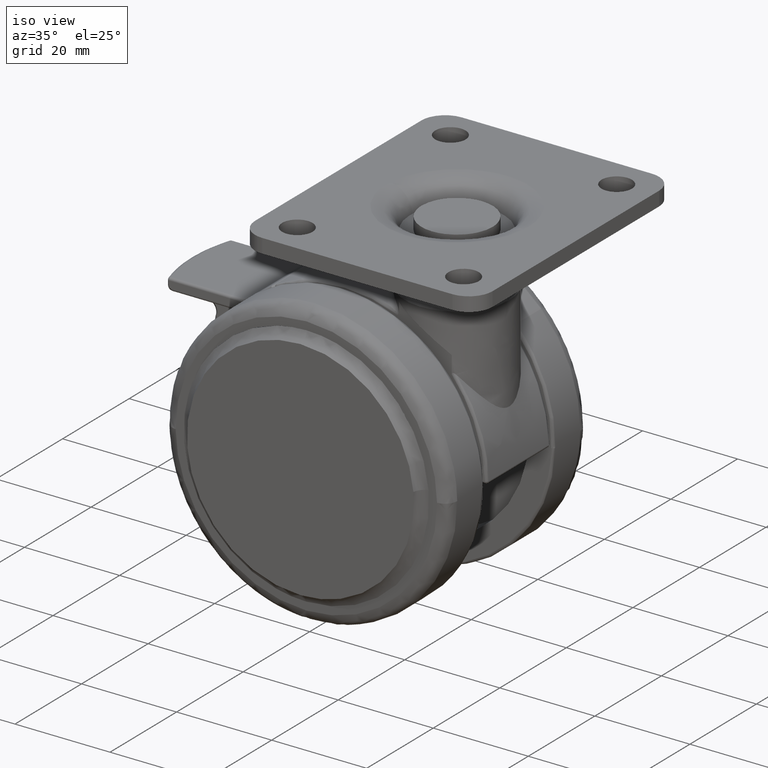
[diagram: clean part render]
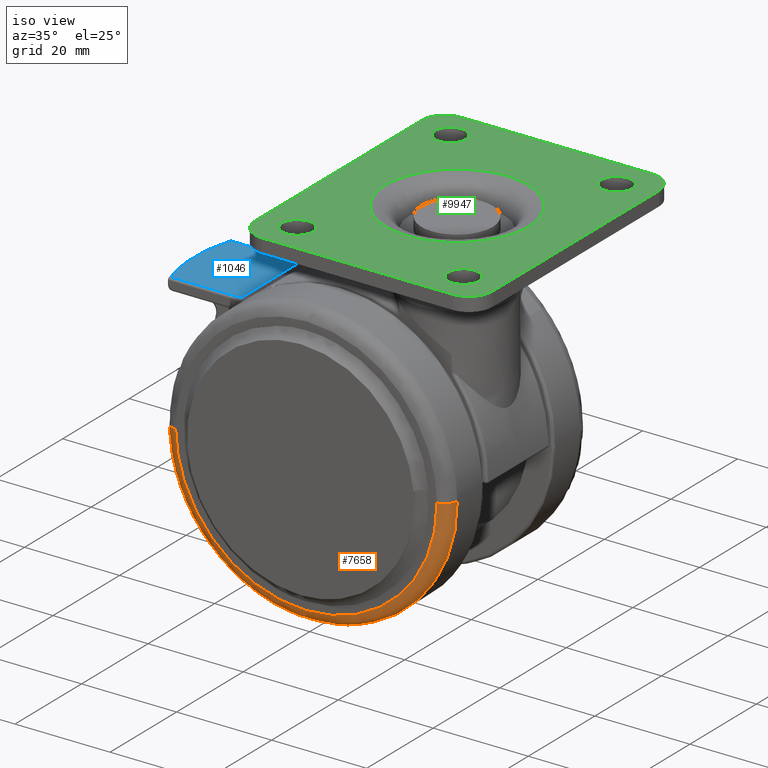
[diagram: same view with three faces highlighted in distinct colors, each labeled with its STEP entity id]
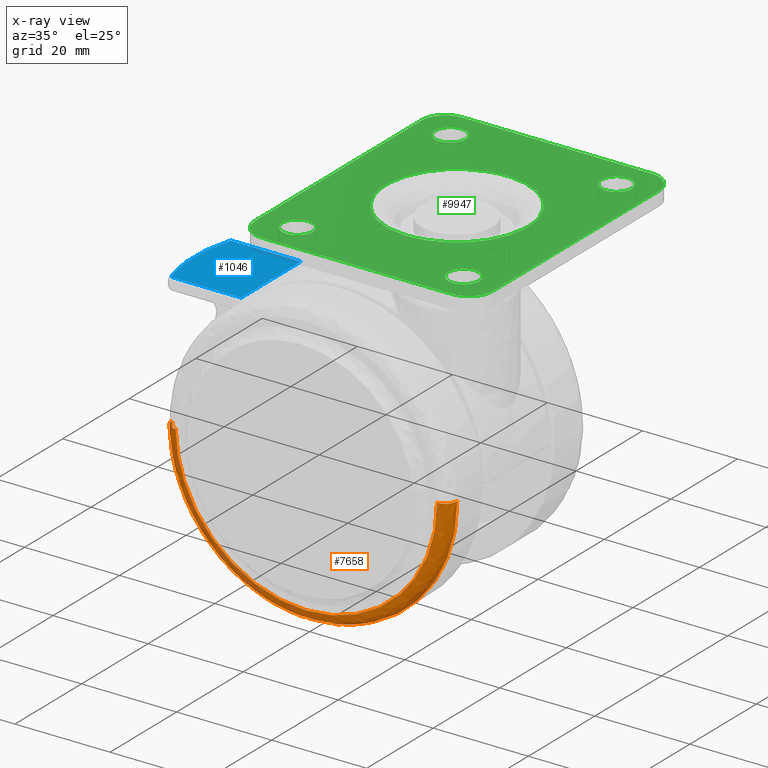
[diagram: x-ray of the same camera — body ghosted, the three highlighted faces saturated]
A machine part, iso view with three faces highlighted in distinct colors.
The next image is the same camera in x-ray (body ghosted, the three faces saturated) — at least one of them is partly hidden behind the body in this view.
Their STEP definitions:

[orange] entity #7658 — the highlighted face is a freeform B-spline surface patch.
#6841=CARTESIAN_POINT('',(21.761231148593620,-18.500000000258090,-20.650637251607481));
#6842=VERTEX_POINT('',#6841);
#6848=CARTESIAN_POINT('',(0.0,-18.500000000000000,-30.0));
#6849=VERTEX_POINT('',#6848);
#6850=CARTESIAN_POINT('',(21.761231148593620,-18.500000000258090,-20.650637251607481));
#6851=CARTESIAN_POINT('',(20.931999387325529,-18.500000000243929,-21.524500630333389));
#6852=CARTESIAN_POINT('',(18.982416055899609,-18.500000000212552,-23.345607756747722));
#6853=CARTESIAN_POINT('',(15.407781718857020,-18.500000000161769,-25.888028934307560));
#6854=CARTESIAN_POINT('',(11.358538172307791,-18.500000000111481,-27.892540451797181));
#6855=CARTESIAN_POINT('',(7.179577390787070,-18.500000000065761,-29.219673872537982));
#6856=CARTESIAN_POINT('',(3.487245917462095,-18.500000000030081,-29.870036624989201));
#6857=CARTESIAN_POINT('',(1.077874549666209,-18.500000000008800,-30.000014829778259));
#6858=CARTESIAN_POINT('',(0.0,-18.500000000000000,-30.0));
#6859=B_SPLINE_CURVE_WITH_KNOTS('',3,(#6850,#6851,#6852,#6853,#6854,#6855,#6856,#6857,#6858),.UNSPECIFIED.,.F.,.U.,(4,1,1,1,1,1,4),(5.760480E-009,3.614059115114056,7.988986165949950,13.124746143221399,17.119250816665769,21.113755602137349,24.347383874365331),.UNSPECIFIED.);
#6860=EDGE_CURVE('',#6842,#6849,#6859,.T.);
#6862=CARTESIAN_POINT('',(-29.997631326114458,-18.500000000502141,-0.376981196502116));
#6863=VERTEX_POINT('',#6862);
#6864=CARTESIAN_POINT('',(0.0,-18.500000000000000,-30.0));
#6865=CARTESIAN_POINT('',(-0.973890313912744,-18.500000000008260,-30.000006734791270));
#6866=CARTESIAN_POINT('',(-3.226019137422327,-18.500000000028230,-29.890269819626319));
#6867=CARTESIAN_POINT('',(-6.958495776596273,-18.500000000065061,-29.282995795281192));
#6868=CARTESIAN_POINT('',(-10.631077299220200,-18.500000000105508,-28.141735741623840));
#6869=CARTESIAN_POINT('',(-13.623916913833501,-18.500000000142489,-26.772205732237492));
#6870=CARTESIAN_POINT('',(-16.059013617123920,-18.500000000174730,-25.386407942250859));
#6871=CARTESIAN_POINT('',(-18.915336785254048,-18.500000000215518,-23.408750785415972));
#6872=CARTESIAN_POINT('',(-21.930709699545790,-18.500000000264169,-20.641061786953681));
#6873=CARTESIAN_POINT('',(-24.449887506142979,-18.500000000311879,-17.500191612605999));
#6874=CARTESIAN_POINT('',(-26.490535567356002,-18.500000000356280,-14.248158141157919));
#6875=CARTESIAN_POINT('',(-28.139101597622648,-18.500000000400011,-10.706149232539270));
#6876=CARTESIAN_POINT('',(-29.567503921568019,-18.500000000452001,-5.910909280889249));
#6877=CARTESIAN_POINT('',(-29.971975696641788,-18.500000000485009,-2.446378040027645));
#6878=CARTESIAN_POINT('',(-29.997631326114458,-18.500000000502141,-0.376981196502116));
#6879=B_SPLINE_CURVE_WITH_KNOTS('',3,(#6864,#6865,#6866,#6867,#6868,#6869,#6870,#6871,#6872,#6873,#6874,#6875,#6876,#6877,#6878),.UNSPECIFIED.,.F.,.U.,(4,1,1,1,1,1,1,1,1,1,1,1,4),(0.000000021029336,2.921676959780939,6.756392132838030,11.321531479891799,14.425831748961929,16.617091083892870,19.721384648203792,24.834313041489128,28.851626959342848,31.773321659809891,36.338466456177287,40.538389696396962,46.746970849121951),.UNSPECIFIED.);
#6880=EDGE_CURVE('',#6849,#6863,#6879,.T.);
#6943=CARTESIAN_POINT('',(29.997631326114458,-18.500000000502141,0.376981196502107));
#6944=VERTEX_POINT('',#6943);
#6963=CARTESIAN_POINT('',(29.997631326114458,-18.500000000502141,0.376981196502107));
#6964=CARTESIAN_POINT('',(30.010519448718760,-18.500000000493628,-0.647960923933294));
#6965=CARTESIAN_POINT('',(29.912489426538791,-18.500000000471761,-3.181817578756475));
#6966=CARTESIAN_POINT('',(29.285683657807041,-18.500000000434870,-6.939322195956899));
#6967=CARTESIAN_POINT('',(28.128197136321571,-18.500000000394810,-10.628680805321990));
#6968=CARTESIAN_POINT('',(26.645703283389871,-18.500000000354401,-13.934565004311020));
#6969=CARTESIAN_POINT('',(24.629558554608519,-18.500000000309999,-17.304593977236468));
#6970=CARTESIAN_POINT('',(22.840433761584698,-18.500000000276479,-19.513544893934728));
#6971=CARTESIAN_POINT('',(21.761231148593620,-18.500000000258090,-20.650637251607481));
#6972=B_SPLINE_CURVE_WITH_KNOTS('',3,(#6963,#6964,#6965,#6966,#6967,#6968,#6969,#6970,#6971),.UNSPECIFIED.,.F.,.U.,(4,1,1,1,1,1,4),(6.902248E-009,3.075076114890138,7.597267632540955,11.395907261290400,14.651862563165331,18.450506457625920,23.153572903452101),.UNSPECIFIED.);
#6973=EDGE_CURVE('',#6944,#6842,#6972,.T.);
#7466=CARTESIAN_POINT('',(-27.497828717093260,-21.0,-0.345566096877184));
#7467=VERTEX_POINT('',#7466);
#7489=CARTESIAN_POINT('',(0.0,-21.0,-27.500000000000000));
#7490=VERTEX_POINT('',#7489);
#7491=CARTESIAN_POINT('',(0.0,-21.0,-27.500000000000000));
#7492=CARTESIAN_POINT('',(-1.897085366435847,-21.000000000000039,-27.500270856961521));
#7493=CARTESIAN_POINT('',(-4.854145511963456,-21.0,-27.192754469429278));
#7494=CARTESIAN_POINT('',(-8.683992625839307,-20.999999999999979,-26.154189658594149));
#7495=CARTESIAN_POINT('',(-11.229423489223720,-21.000000000000039,-25.145225460336860));
#7496=CARTESIAN_POINT('',(-13.720043277257130,-21.000000000000028,-23.884185283102241));
#7497=CARTESIAN_POINT('',(-16.456529593838269,-21.000000000000028,-22.145417768254770));
#7498=CARTESIAN_POINT('',(-19.139607051584751,-20.999999999999730,-19.857449163711070));
#7499=CARTESIAN_POINT('',(-21.646654345524411,-21.000000000000188,-17.077638434692059));
#7500=CARTESIAN_POINT('',(-23.439043589757421,-20.999999999999901,-14.508108484473050));
#7501=CARTESIAN_POINT('',(-24.912088002822919,-21.000000000000021,-11.748836840783710));
#7502=CARTESIAN_POINT('',(-26.067500346707259,-21.0,-8.961824471735341));
#7503=CARTESIAN_POINT('',(-27.143068942500459,-21.000000000000028,-5.139872057200232));
#7504=CARTESIAN_POINT('',(-27.475601343660820,-21.000000000000011,-2.130914012779630));
#7505=CARTESIAN_POINT('',(-27.497828717093260,-21.0,-0.345566096877184));
#7506=B_SPLINE_CURVE_WITH_KNOTS('',3,(#7491,#7492,#7493,#7494,#7495,#7496,#7497,#7498,#7499,#7500,#7501,#7502,#7503,#7504,#7505),.UNSPECIFIED.,.F.,.U.,(4,1,1,1,1,1,1,1,1,1,1,1,4),(0.000000027495133,5.691187628219666,8.871576655071785,11.884565905597880,13.893226149922350,17.241006999969041,21.593066609866838,24.438662586925840,28.455990303919592,30.966821428457202,33.812429082353702,37.494966805851412,42.851389945901253),.UNSPECIFIED.);
#7507=EDGE_CURVE('',#7490,#7467,#7506,.T.);
#7509=CARTESIAN_POINT('',(27.497828717093260,-21.0,0.345566096877190));
#7510=VERTEX_POINT('',#7509);
#7511=CARTESIAN_POINT('',(27.497828717093260,-21.0,0.345566096877190));
#7512=CARTESIAN_POINT('',(27.512114652331469,-21.000000000000039,-0.788262012692066));
#7513=CARTESIAN_POINT('',(27.408512315544709,-20.999999999999929,-2.887464900331992));
#7514=CARTESIAN_POINT('',(26.936620229093439,-20.999999999999989,-5.744243817406962));
#7515=CARTESIAN_POINT('',(26.208336355375149,-21.000000000000139,-8.486648899182917));
#7516=CARTESIAN_POINT('',(25.263941718985301,-20.999999999999890,-10.983314142465421));
#7517=CARTESIAN_POINT('',(23.817285281532019,-21.000000000000011,-13.876511539507231));
#7518=CARTESIAN_POINT('',(22.038125044155009,-20.999999999999972,-16.584994279625260));
#7519=CARTESIAN_POINT('',(19.582945153945420,-21.000000000000011,-19.417423428238038));
#7520=CARTESIAN_POINT('',(17.204146923685759,-21.0,-21.532315770445312));
#7521=CARTESIAN_POINT('',(14.603547640655830,-21.000000000000011,-23.358859115849629));
#7522=CARTESIAN_POINT('',(12.274270543310820,-21.000000000000028,-24.662575531999490));
#7523=CARTESIAN_POINT('',(9.565777897079343,-20.999999999999972,-25.834006522993629));
#7524=CARTESIAN_POINT('',(7.020592286055688,-21.000000000000039,-26.638536210229532));
#7525=CARTESIAN_POINT('',(3.741887626315047,-21.000000000000060,-27.317185256784750));
#7526=CARTESIAN_POINT('',(1.474096523654951,-20.999999999999819,-27.500112064418989));
#7527=CARTESIAN_POINT('',(0.0,-21.0,-27.500000000000000));
#7528=B_SPLINE_CURVE_WITH_KNOTS('',3,(#7511,#7512,#7513,#7514,#7515,#7516,#7517,#7518,#7519,#7520,#7521,#7522,#7523,#7524,#7525,#7526,#7527),.UNSPECIFIED.,.F.,.U.,(4,1,1,1,1,1,1,1,1,1,1,1,1,1,4),(0.000000026008991,3.401753370764880,6.293246877302309,8.674491144497011,11.906165652713170,14.287399005994050,18.369534865043970,21.601197727710890,25.513208653057092,27.894436465584501,31.126113742347151,33.507350376120762,36.739032621623103,39.120274990648717,43.542543582517787),.UNSPECIFIED.);
#7529=EDGE_CURVE('',#7510,#7490,#7528,.T.);
#7589=CARTESIAN_POINT('',(27.497828717093260,-21.0,0.345566096877190));
#7590=CARTESIAN_POINT('',(27.794417893576959,-21.000254366651550,0.349293342581669));
#7591=CARTESIAN_POINT('',(28.264605930511941,-20.915237643481589,0.355202210738668));
#7592=CARTESIAN_POINT('',(28.927918296029709,-20.586470801807572,0.363538078531114));
#7593=CARTESIAN_POINT('',(29.408958939399671,-20.161182271534919,0.369583331737257));
#7594=CARTESIAN_POINT('',(29.736951676849060,-19.649829461512368,0.373705226994147));
#7595=CARTESIAN_POINT('',(29.943804532880218,-19.113537836009641,0.376304753471078));
#7596=CARTESIAN_POINT('',(29.997732895268761,-18.735223988039969,0.376982472927977));
#7597=CARTESIAN_POINT('',(29.997631326114458,-18.500000000502141,0.376981196502107));
#7598=B_SPLINE_CURVE_WITH_KNOTS('',3,(#7589,#7590,#7591,#7592,#7593,#7594,#7595,#7596,#7597),.UNSPECIFIED.,.F.,.U.,(4,1,1,1,1,1,4),(0.000000106168399,0.889712853617577,1.411286363706622,2.208930088812190,2.791861405146521,3.221383350081401,3.927015456077293),.UNSPECIFIED.);
#7599=EDGE_CURVE('',#7510,#6944,#7598,.T.);
#7604=CARTESIAN_POINT('',(-27.497828717093260,-21.0,-0.345566096877184));
#7605=CARTESIAN_POINT('',(-27.640985051154772,-21.000005183687609,-0.347365147124147));
#7606=CARTESIAN_POINT('',(-27.978441840631859,-20.970962434252041,-0.351605977433012));
#7607=CARTESIAN_POINT('',(-28.432461209758070,-20.836257221985029,-0.357311653421833));
#7608=CARTESIAN_POINT('',(-28.940804505170359,-20.568591144870620,-0.363700019934935));
#7609=CARTESIAN_POINT('',(-29.379094536602679,-20.190467875993129,-0.369208024828730));
#7610=CARTESIAN_POINT('',(-29.748534513742040,-19.644789406525600,-0.373850788877250));
#7611=CARTESIAN_POINT('',(-29.953408136223072,-19.082902589873139,-0.376425442262274));
#7612=CARTESIAN_POINT('',(-29.997660865497849,-18.684074425066960,-0.376981567726879));
#7613=CARTESIAN_POINT('',(-29.997631326114458,-18.500000000502141,-0.376981196502116));
#7614=B_SPLINE_CURVE_WITH_KNOTS('',3,(#7604,#7605,#7606,#7607,#7608,#7609,#7610,#7611,#7612,#7613),.UNSPECIFIED.,.F.,.U.,(4,1,1,1,1,1,1,4),(0.000000106159672,0.429509653126690,1.012434279452647,1.411286363703748,2.147572307954930,2.730500796885241,3.374793093247939,3.927015456077287),.UNSPECIFIED.);
#7615=EDGE_CURVE('',#7467,#6863,#7614,.T.);
#7620=CARTESIAN_POINT('',(27.314399869140562,-20.993948415769275,1.107271474256576));
#7621=CARTESIAN_POINT('',(27.319171830048464,-20.993948415769275,0.727550879843133));
#7622=CARTESIAN_POINT('',(27.667381279899381,-20.993948415769271,-26.980618116012554));
#7623=CARTESIAN_POINT('',(0.343381581943409,-20.993948415769275,-27.323999697955983));
#7624=CARTESIAN_POINT('',(-26.980618116012554,-20.993948415769271,-27.667381279899381));
#7625=CARTESIAN_POINT('',(-27.328827565863083,-20.993948415769268,0.040787715923046));
#7626=CARTESIAN_POINT('',(-27.333599526770573,-20.993948415769275,0.420508310303988));
#7627=CARTESIAN_POINT('',(30.180851656252333,-21.193842822697402,1.223471731681471));
#7628=CARTESIAN_POINT('',(30.186124400481049,-21.193842822697391,0.803902164503692));
#7629=CARTESIAN_POINT('',(30.570875952834534,-21.193842822697391,-29.812041884667309));
#7630=CARTESIAN_POINT('',(0.379417034083618,-21.193842822697388,-30.191458918750921));
#7631=CARTESIAN_POINT('',(-29.812041884667309,-21.193842822697391,-30.570875952834534));
#7632=CARTESIAN_POINT('',(-30.196793437020357,-21.193842822697398,0.045068096299696));
#7633=CARTESIAN_POINT('',(-30.202066181248615,-21.193842822697395,0.464637663441562));
#7634=CARTESIAN_POINT('',(29.981043176384581,-18.326157187061735,1.215371893093324));
#7635=CARTESIAN_POINT('',(29.986281013082486,-18.326157187061746,0.798580032733478));
#7636=CARTESIAN_POINT('',(30.368485366845370,-18.326157187061742,-29.614675062863423));
#7637=CARTESIAN_POINT('',(0.376905151990971,-18.326157187061735,-29.991580214854395));
#7638=CARTESIAN_POINT('',(-29.614675062863423,-18.326157187061742,-30.368485366845370));
#7639=CARTESIAN_POINT('',(-29.996879416625855,-18.326157187061746,0.044769728715019));
#7640=CARTESIAN_POINT('',(-30.002117253323302,-18.326157187061746,0.461561589039191));
#7648=(BOUNDED_SURFACE()B_SPLINE_SURFACE(2,2,((#7620,#7627,#7634),(#7621,#7628,#7635),(#7622,#7629,#7636),(#7623,#7630,#7637),(#7624,#7631,#7638),(#7625,#7632,#7639),(#7626,#7633,#7640)),.UNSPECIFIED.,.F.,.F.,.U.)B_SPLINE_SURFACE_WITH_KNOTS((3,1,2,1,3),(3,3),(0.0,0.993912017759718,50.689512901467438,100.385113785175190,101.379025802848300),(0.0,4.556824911211793),.UNSPECIFIED.)GEOMETRIC_REPRESENTATION_ITEM()RATIONAL_B_SPLINE_SURFACE(((0.927077710674232,0.608371547716092,0.927077722427194),(0.921709902957582,0.604849058230237,0.921709914642495),(0.647951709431553,0.425202094466791,0.647951717645915),(0.916342095240933,0.601326568744382,0.916342106857795),(0.647951709431553,0.425202094466791,0.647951717645915),(0.921709902957115,0.604849058229930,0.921709914642027),(0.927077710673297,0.608371547715478,0.927077722426259)))REPRESENTATION_ITEM('')SURFACE());
#7649=ORIENTED_EDGE('',*,*,#7507,.T.);
#7650=ORIENTED_EDGE('',*,*,#7615,.T.);
#7651=ORIENTED_EDGE('',*,*,#6880,.F.);
#7652=ORIENTED_EDGE('',*,*,#6860,.F.);
#7653=ORIENTED_EDGE('',*,*,#6973,.F.);
#7654=ORIENTED_EDGE('',*,*,#7599,.F.);
#7655=ORIENTED_EDGE('',*,*,#7529,.T.);
#7656=EDGE_LOOP('',(#7649,#7650,#7651,#7652,#7653,#7654,#7655));
#7657=FACE_OUTER_BOUND('',#7656,.T.);
#7658=ADVANCED_FACE('',(#7657),#7648,.T.);

[blue] entity #1046 — the highlighted face is a freeform B-spline surface patch.
#83=CARTESIAN_POINT('',(-22.107690969433900,-8.999999999999901,21.499999173841701));
#84=VERTEX_POINT('',#83);
#95=CARTESIAN_POINT('',(-36.909291575760001,-8.999999999999901,21.499999173841850));
#96=VERTEX_POINT('',#95);
#97=CARTESIAN_POINT('',(-36.909291575760001,-8.999999999999901,21.499999173841850));
#98=CARTESIAN_POINT('',(-22.107690969433900,-8.999999999999901,21.499999173841701));
#99=QUASI_UNIFORM_CURVE('',1,(#97,#98),.UNSPECIFIED.,.F.,.U.);
#100=EDGE_CURVE('',#96,#84,#99,.T.);
#238=CARTESIAN_POINT('',(-22.107690969433900,8.999999999999901,21.499999173841701));
#239=VERTEX_POINT('',#238);
#259=CARTESIAN_POINT('',(-36.909291575760001,8.999999999999890,21.499999173841850));
#260=VERTEX_POINT('',#259);
#272=CARTESIAN_POINT('',(-22.107690969433900,8.999999999999901,21.499999173841701));
#273=CARTESIAN_POINT('',(-36.909291575760001,8.999999999999890,21.499999173841850));
#274=QUASI_UNIFORM_CURVE('',1,(#272,#273),.UNSPECIFIED.,.F.,.U.);
#275=EDGE_CURVE('',#239,#260,#274,.T.);
#842=CARTESIAN_POINT('',(-22.107690969433900,8.999999999999901,21.499999173841701));
#843=CARTESIAN_POINT('',(-22.107690969433900,-8.999999999999901,21.499999173841701));
#844=QUASI_UNIFORM_CURVE('',1,(#842,#843),.UNSPECIFIED.,.F.,.U.);
#845=EDGE_CURVE('',#239,#84,#844,.T.);
#1025=CARTESIAN_POINT('',(-21.298101107577789,-9.899099965112397,21.499999173841850));
#1026=CARTESIAN_POINT('',(-39.125287137301413,-9.899099965112397,21.499999173841850));
#1027=CARTESIAN_POINT('',(-21.298101107577789,9.899100447910019,21.499999173841850));
#1028=CARTESIAN_POINT('',(-39.125287137301413,9.899100447910019,21.499999173841850));
#1029=B_SPLINE_SURFACE_WITH_KNOTS('',1,1,((#1025,#1027),(#1026,#1028)),.UNSPECIFIED.,.F.,.F.,.U.,(2,2),(2,2),(0.0,17.827186029723620),(0.0,19.798200413022411),.UNSPECIFIED.);
#1030=ORIENTED_EDGE('',*,*,#845,.F.);
#1031=ORIENTED_EDGE('',*,*,#275,.T.);
#1032=CARTESIAN_POINT('',(-36.909291575760001,8.999999999999890,21.499999173841850));
#1033=CARTESIAN_POINT('',(-37.301705328589357,7.775197677513251,21.499999173841911));
#1034=CARTESIAN_POINT('',(-37.949128530602607,5.181539798987578,21.499999173841761));
#1035=CARTESIAN_POINT('',(-38.375090995149122,1.289111504717733,21.499999173841999));
#1036=CARTESIAN_POINT('',(-38.287195240667089,-2.337227327350015,21.499999173841459));
#1037=CARTESIAN_POINT('',(-37.814565783231707,-5.738664893048671,21.499999173842649));
#1038=CARTESIAN_POINT('',(-37.272640098036682,-7.865923542342959,21.499999173841200));
#1039=CARTESIAN_POINT('',(-36.909291575760001,-8.999999999999901,21.499999173841850));
#1040=B_SPLINE_CURVE_WITH_KNOTS('',3,(#1032,#1033,#1034,#1035,#1036,#1037,#1038,#1039),.UNSPECIFIED.,.F.,.U.,(4,1,1,1,1,4),(6.102375E-009,3.858389638430651,8.002601144851644,11.718073067232510,14.719052291514609,18.291635444429989),.UNSPECIFIED.);
#1041=EDGE_CURVE('',#260,#96,#1040,.T.);
#1042=ORIENTED_EDGE('',*,*,#1041,.T.);
#1043=ORIENTED_EDGE('',*,*,#100,.T.);
#1044=EDGE_LOOP('',(#1030,#1031,#1042,#1043));
#1045=FACE_OUTER_BOUND('',#1044,.T.);
#1046=ADVANCED_FACE('',(#1045),#1029,.F.);

[green] entity #9947 — the highlighted face is a freeform B-spline surface patch.
#8501=CARTESIAN_POINT('',(1.661888827501579,20.640712218985350,46.0));
#8502=VERTEX_POINT('',#8501);
#8508=CARTESIAN_POINT('',(2.700000000000000,23.0,46.0));
#8509=VERTEX_POINT('',#8508);
#8510=CARTESIAN_POINT('',(1.661888827501579,20.640712218985350,46.0));
#8511=CARTESIAN_POINT('',(1.916743720772984,20.873942905152312,46.000000000000092));
#8512=CARTESIAN_POINT('',(2.236901764601848,21.281049056889032,46.0));
#8513=CARTESIAN_POINT('',(2.604632195147628,22.088241094445419,45.999999999999979));
#8514=CARTESIAN_POINT('',(2.700307898901814,22.626877823792139,46.000000000000021));
#8515=CARTESIAN_POINT('',(2.700000000000000,23.0,46.0));
#8516=B_SPLINE_CURVE_WITH_KNOTS('',3,(#8510,#8511,#8512,#8513,#8514,#8515),.UNSPECIFIED.,.F.,.U.,(4,1,1,4),(0.000000029412556,1.036306034445707,1.533713299139557,2.652919232562654),.UNSPECIFIED.);
#8517=EDGE_CURVE('',#8502,#8509,#8516,.T.);
#8519=CARTESIAN_POINT('',(-0.500001340175659,26.199999999999719,46.0));
#8520=VERTEX_POINT('',#8519);
#8521=CARTESIAN_POINT('',(2.700000000000000,23.0,46.0));
#8522=CARTESIAN_POINT('',(2.700076988803981,23.274892612250461,45.999999999999943));
#8523=CARTESIAN_POINT('',(2.627044764529993,23.837741311584018,46.000000000000057));
#8524=CARTESIAN_POINT('',(2.359177667256553,24.484566554396530,46.000000000000057));
#8525=CARTESIAN_POINT('',(2.016640802986306,24.997028826058020,45.999999999999972));
#8526=CARTESIAN_POINT('',(1.661165378812934,25.384475383976909,45.999999999999787));
#8527=CARTESIAN_POINT('',(1.167184607576288,25.755553024401820,46.000000000000341));
#8528=CARTESIAN_POINT('',(0.455415330122470,26.097634395647599,45.999999999999531));
#8529=CARTESIAN_POINT('',(-0.133442462390952,26.200272777989479,46.000000000000178));
#8530=CARTESIAN_POINT('',(-0.500001340175659,26.199999999999719,46.0));
#8531=B_SPLINE_CURVE_WITH_KNOTS('',3,(#8521,#8522,#8523,#8524,#8525,#8526,#8527,#8528,#8529,#8530),.UNSPECIFIED.,.F.,.U.,(4,1,1,1,1,1,1,4),(0.000000105261810,0.824668159905265,1.688626347366894,2.081341753411128,2.670343052050241,3.259419716827376,3.927018970739030,5.026580540558659),.UNSPECIFIED.);
#8532=EDGE_CURVE('',#8509,#8520,#8531,.T.);
#8534=CARTESIAN_POINT('',(-2.661888827501582,25.359287781014650,46.0));
#8535=VERTEX_POINT('',#8534);
#8536=CARTESIAN_POINT('',(-0.500001340175659,26.199999999999719,46.0));
#8537=CARTESIAN_POINT('',(-0.821460617079464,26.200161941109570,46.000000000000107));
#8538=CARTESIAN_POINT('',(-1.266413628481869,26.132357803427720,45.999999999999901));
#8539=CARTESIAN_POINT('',(-2.008375584216024,25.853680229813278,46.000000000000043));
#8540=CARTESIAN_POINT('',(-2.406797254941520,25.593344494102439,46.0));
#8541=CARTESIAN_POINT('',(-2.661888827501582,25.359287781014650,46.0));
#8542=B_SPLINE_CURVE_WITH_KNOTS('',3,(#8536,#8537,#8538,#8539,#8540,#8541),.UNSPECIFIED.,.F.,.U.,(4,1,1,4),(0.000000021626867,0.964308508729303,1.335174790699742,2.373659766540841),.UNSPECIFIED.);
#8543=EDGE_CURVE('',#8520,#8535,#8542,.T.);
#8583=CARTESIAN_POINT('',(-3.700000000000000,23.0,46.0));
#8584=VERTEX_POINT('',#8583);
#8585=CARTESIAN_POINT('',(-2.661888827501582,25.359287781014650,46.0));
#8586=CARTESIAN_POINT('',(-2.947424562905854,25.098127947570479,46.000000000000092));
#8587=CARTESIAN_POINT('',(-3.277403363151028,24.661023097421118,45.999999999999901));
#8588=CARTESIAN_POINT('',(-3.618654669351410,23.842732328690960,46.000000000000057));
#8589=CARTESIAN_POINT('',(-3.700195500050473,23.345465161269068,45.999999999999943));
#8590=CARTESIAN_POINT('',(-3.700000000000000,23.0,46.0));
#8591=B_SPLINE_CURVE_WITH_KNOTS('',3,(#8585,#8586,#8587,#8588,#8589,#8590),.UNSPECIFIED.,.F.,.U.,(4,1,1,4),(0.000000029411919,1.160665530059935,1.616613227562249,2.652919232562653),.UNSPECIFIED.);
#8592=EDGE_CURVE('',#8535,#8584,#8591,.T.);
#8594=CARTESIAN_POINT('',(-0.499998659824357,19.800000000000281,46.0));
#8595=VERTEX_POINT('',#8594);
#8596=CARTESIAN_POINT('',(-3.700000000000000,23.0,46.0));
#8597=CARTESIAN_POINT('',(-3.700345148515849,22.607258848985811,46.000000000000043));
#8598=CARTESIAN_POINT('',(-3.573069701095430,21.926812998021571,45.999999999999943));
#8599=CARTESIAN_POINT('',(-3.171713488558397,21.197784363615892,46.000000000000092));
#8600=CARTESIAN_POINT('',(-2.678245846318737,20.618490774618579,45.999999999999993));
#8601=CARTESIAN_POINT('',(-2.074688908487048,20.165033959303528,45.999999999999773));
#8602=CARTESIAN_POINT('',(-1.272289613075804,19.861327790496389,46.000000000000213));
#8603=CARTESIAN_POINT('',(-0.748707445686038,19.799958568341751,45.999999999999730));
#8604=CARTESIAN_POINT('',(-0.499998659824357,19.800000000000281,46.0));
#8605=B_SPLINE_CURVE_WITH_KNOTS('',3,(#8596,#8597,#8598,#8599,#8600,#8601,#8602,#8603,#8604),.UNSPECIFIED.,.F.,.U.,(4,1,1,1,1,1,4),(0.000000105269612,1.178103383195594,2.042052962212793,2.474052021637787,3.455771538001631,4.280451145652314,5.026580540558665),.UNSPECIFIED.);
#8606=EDGE_CURVE('',#8584,#8595,#8605,.T.);
#8608=CARTESIAN_POINT('',(-0.499998659824357,19.800000000000281,46.0));
#8609=CARTESIAN_POINT('',(-0.153809818887891,19.799784449867211,45.999999999999979));
#8610=CARTESIAN_POINT('',(0.414734104237284,19.893224992979569,45.999999999999901));
#8611=CARTESIAN_POINT('',(1.138213479001142,20.224068623707179,46.000000000000199));
#8612=CARTESIAN_POINT('',(1.497843046578740,20.490348786089790,45.999999999999837));
#8613=CARTESIAN_POINT('',(1.661888827501579,20.640712218985350,46.0));
#8614=B_SPLINE_CURVE_WITH_KNOTS('',3,(#8608,#8609,#8610,#8611,#8612,#8613),.UNSPECIFIED.,.F.,.U.,(4,1,1,4),(0.000000021623812,1.038484997428752,1.706066918696896,2.373659766540861),.UNSPECIFIED.);
#8615=EDGE_CURVE('',#8595,#8502,#8614,.T.);
#8702=CARTESIAN_POINT('',(36.661888827501578,20.640712218985350,45.999999999999993));
#8703=VERTEX_POINT('',#8702);
#8709=CARTESIAN_POINT('',(37.700000000000003,23.0,46.0));
#8710=VERTEX_POINT('',#8709);
#8711=CARTESIAN_POINT('',(36.661888827501578,20.640712218985350,45.999999999999993));
#8712=CARTESIAN_POINT('',(36.835090794431089,20.799380125237398,45.999999999999872));
#8713=CARTESIAN_POINT('',(37.173813323406819,21.186447190487900,46.000000000000448));
#8714=CARTESIAN_POINT('',(37.585109962379320,21.977670164112979,45.999999999999147));
#8715=CARTESIAN_POINT('',(37.700277019128173,22.626902472851029,46.000000000001073));
#8716=CARTESIAN_POINT('',(37.700000000000003,23.0,46.0));
#8717=B_SPLINE_CURVE_WITH_KNOTS('',3,(#8711,#8712,#8713,#8714,#8715,#8716),.UNSPECIFIED.,.F.,.U.,(4,1,1,4),(0.000000029413016,0.704682612825469,1.533713299139622,2.652919232562660),.UNSPECIFIED.);
#8718=EDGE_CURVE('',#8703,#8710,#8717,.T.);
#8720=CARTESIAN_POINT('',(34.499998659824342,26.199999999999719,46.0));
#8721=VERTEX_POINT('',#8720);
#8722=CARTESIAN_POINT('',(37.700000000000003,23.0,46.0));
#8723=CARTESIAN_POINT('',(37.700155385053947,23.327265940496059,45.999999999999957));
#8724=CARTESIAN_POINT('',(37.602780513440152,23.955489115041690,46.000000000000128));
#8725=CARTESIAN_POINT('',(37.207735922450453,24.777773204270218,46.000000000000043));
#8726=CARTESIAN_POINT('',(36.730138244514428,25.324481606913171,45.999999999999922));
#8727=CARTESIAN_POINT('',(36.241668434841117,25.700831152447311,46.000000000000213));
#8728=CARTESIAN_POINT('',(35.825690859124400,25.926472602496379,45.999999999999737));
#8729=CARTESIAN_POINT('',(35.232976934767777,26.138565383225920,46.000000000000320));
#8730=CARTESIAN_POINT('',(34.801083060736488,26.200128361351631,46.000000000000213));
#8731=CARTESIAN_POINT('',(34.499998659824342,26.199999999999719,46.0));
#8732=B_SPLINE_CURVE_WITH_KNOTS('',3,(#8722,#8723,#8724,#8725,#8726,#8727,#8728,#8729,#8730,#8731),.UNSPECIFIED.,.F.,.U.,(4,1,1,1,1,1,1,4),(0.000000105263994,0.981746555929980,1.884984490318498,2.709635221845645,3.141596801344444,3.730664804277713,4.123376205630324,5.026580540558654),.UNSPECIFIED.);
#8733=EDGE_CURVE('',#8710,#8721,#8732,.T.);
#8735=CARTESIAN_POINT('',(32.338111172498422,25.359287781014650,46.0));
#8736=VERTEX_POINT('',#8735);
#8737=CARTESIAN_POINT('',(34.499998659824342,26.199999999999719,46.0));
#8738=CARTESIAN_POINT('',(34.215645706999503,26.200087462161122,46.000000000000092));
#8739=CARTESIAN_POINT('',(33.684096768859753,26.128678344195890,45.999999999999950));
#8740=CARTESIAN_POINT('',(32.945105841640192,25.831385002217509,46.000000000000021));
#8741=CARTESIAN_POINT('',(32.529485635987861,25.534731241363762,46.000000000000028));
#8742=CARTESIAN_POINT('',(32.338111172498422,25.359287781014650,46.0));
#8743=B_SPLINE_CURVE_WITH_KNOTS('',3,(#8737,#8738,#8739,#8740,#8741,#8742),.UNSPECIFIED.,.F.,.U.,(4,1,1,4),(0.000000021626900,0.853035718230387,1.594799770241252,2.373659766540857),.UNSPECIFIED.);
#8744=EDGE_CURVE('',#8721,#8736,#8743,.T.);
#8785=CARTESIAN_POINT('',(31.300000000000001,23.0,46.0));
#8786=VERTEX_POINT('',#8785);
#8787=CARTESIAN_POINT('',(32.338111172498422,25.359287781014650,46.0));
#8788=CARTESIAN_POINT('',(32.185291020239227,25.219280814315560,46.000000000000092));
#8789=CARTESIAN_POINT('',(31.897706030784050,24.899109878014720,45.999999999999851));
#8790=CARTESIAN_POINT('',(31.602203642990389,24.396041805815180,46.0));
#8791=CARTESIAN_POINT('',(31.365500141044421,23.759876424100280,46.000000000000057));
#8792=CARTESIAN_POINT('',(31.299860640202670,23.303999644482289,45.999999999999901));
#8793=CARTESIAN_POINT('',(31.300000000000001,23.0,46.0));
#8794=B_SPLINE_CURVE_WITH_KNOTS('',3,(#8787,#8788,#8789,#8790,#8791,#8792,#8793),.UNSPECIFIED.,.F.,.U.,(4,1,1,1,4),(0.000000029412257,0.621777047602290,1.285023365005187,1.740973266759575,2.652919232562656),.UNSPECIFIED.);
#8795=EDGE_CURVE('',#8736,#8786,#8794,.T.);
#8797=CARTESIAN_POINT('',(34.500001340175643,19.800000000000281,45.999999999999993));
#8798=VERTEX_POINT('',#8797);
#8799=CARTESIAN_POINT('',(31.300000000000001,23.0,46.0));
#8800=CARTESIAN_POINT('',(31.299943529281791,22.725114704496409,45.999999999999957));
#8801=CARTESIAN_POINT('',(31.376289477471840,22.136052256106520,46.000000000000192));
#8802=CARTESIAN_POINT('',(31.673438186263230,21.442847799993089,45.999999999999687));
#8803=CARTESIAN_POINT('',(32.111765462056120,20.836490678554540,46.000000000000313));
#8804=CARTESIAN_POINT('',(32.588282858200472,20.399248349231151,45.999999999999957));
#8805=CARTESIAN_POINT('',(33.183424620699803,20.062154378891581,45.999999999999893));
#8806=CARTESIAN_POINT('',(33.806254211277597,19.852160142475949,46.000000000000483));
#8807=CARTESIAN_POINT('',(34.251288380549532,19.799944111373119,45.999999999999432));
#8808=CARTESIAN_POINT('',(34.500001340175643,19.800000000000281,45.999999999999993));
#8809=B_SPLINE_CURVE_WITH_KNOTS('',3,(#8799,#8800,#8801,#8802,#8803,#8804,#8805,#8806,#8807,#8808),.UNSPECIFIED.,.F.,.U.,(4,1,1,1,1,1,1,4),(0.000000105262140,0.824668159904866,1.767162747452496,2.238411792356550,3.063060452474589,3.691393158361809,4.280451145650599,5.026580540558739),.UNSPECIFIED.);
#8810=EDGE_CURVE('',#8786,#8798,#8809,.T.);
#8812=CARTESIAN_POINT('',(34.500001340175643,19.800000000000281,45.999999999999993));
#8813=CARTESIAN_POINT('',(34.870929999606972,19.799707748362220,46.000000000000121));
#8814=CARTESIAN_POINT('',(35.464137179203867,19.904382790438731,45.999999999999872));
#8815=CARTESIAN_POINT('',(36.179747779058069,20.251933173459641,45.999999999999993));
#8816=CARTESIAN_POINT('',(36.516063995005837,20.507063774191948,46.000000000000007));
#8817=CARTESIAN_POINT('',(36.661888827501578,20.640712218985350,45.999999999999993));
#8818=B_SPLINE_CURVE_WITH_KNOTS('',3,(#8812,#8813,#8814,#8815,#8816,#8817),.UNSPECIFIED.,.F.,.U.,(4,1,1,4),(0.000000021625047,1.112659058445236,1.780244814814004,2.373659766540864),.UNSPECIFIED.);
#8819=EDGE_CURVE('',#8798,#8703,#8818,.T.);
#8907=CARTESIAN_POINT('',(36.661888827501578,-25.359287781014650,46.0));
#8908=VERTEX_POINT('',#8907);
#8914=CARTESIAN_POINT('',(37.700000000000003,-23.0,46.0));
#8915=VERTEX_POINT('',#8914);
#8916=CARTESIAN_POINT('',(36.661888827501578,-25.359287781014650,46.0));
#8917=CARTESIAN_POINT('',(36.814709990152963,-25.219282325096039,45.999999999999872));
#8918=CARTESIAN_POINT('',(37.102294028925158,-24.899108849600271,46.000000000000213));
#8919=CARTESIAN_POINT('',(37.383718507166058,-24.419995918578490,45.999999999999901));
#8920=CARTESIAN_POINT('',(37.628474247346738,-23.787486000946672,46.000000000000107));
#8921=CARTESIAN_POINT('',(37.700177747545148,-23.331642034786000,45.999999999999943));
#8922=CARTESIAN_POINT('',(37.700000000000003,-23.0,46.0));
#8923=B_SPLINE_CURVE_WITH_KNOTS('',3,(#8916,#8917,#8918,#8919,#8920,#8921,#8922),.UNSPECIFIED.,.F.,.U.,(4,1,1,1,4),(0.000000029411896,0.621777047602016,1.285023365005253,1.658074056554264,2.652919232562657),.UNSPECIFIED.);
#8924=EDGE_CURVE('',#8908,#8915,#8923,.T.);
#8926=CARTESIAN_POINT('',(34.499998659824342,-19.800000000000281,46.0));
#8927=VERTEX_POINT('',#8926);
#8928=CARTESIAN_POINT('',(37.700000000000003,-23.0,46.0));
#8929=CARTESIAN_POINT('',(37.700007469216608,-22.816743092330441,46.000000000000043));
#8930=CARTESIAN_POINT('',(37.665073735486679,-22.410951493359651,45.999999999999893));
#8931=CARTESIAN_POINT('',(37.503610961406530,-21.841127415892831,46.000000000000277));
#8932=CARTESIAN_POINT('',(37.214151917877572,-21.266067615672089,45.999999999999687));
#8933=CARTESIAN_POINT('',(36.857653413113447,-20.809244221646541,46.000000000000043));
#8934=CARTESIAN_POINT('',(36.434812472882740,-20.435408688248490,46.000000000000007));
#8935=CARTESIAN_POINT('',(35.970688653497291,-20.137469574467101,46.000000000000057));
#8936=CARTESIAN_POINT('',(35.324616615343913,-19.874445738333339,45.999999999999837));
#8937=CARTESIAN_POINT('',(34.801074171848377,-19.799893723314909,46.000000000000313));
#8938=CARTESIAN_POINT('',(34.499998659824342,-19.800000000000281,46.0));
#8939=B_SPLINE_CURVE_WITH_KNOTS('',3,(#8928,#8929,#8930,#8931,#8932,#8933,#8934,#8935,#8936,#8937,#8938),.UNSPECIFIED.,.F.,.U.,(4,1,1,1,1,1,1,1,4),(0.000000105262246,0.549776105364639,1.217374445313705,1.767162747452991,2.474052021632666,2.945238975652895,3.455771537998703,4.123376205629437,5.026580540558741),.UNSPECIFIED.);
#8940=EDGE_CURVE('',#8915,#8927,#8939,.T.);
#8942=CARTESIAN_POINT('',(32.338111172498422,-20.640712218985350,46.0));
#8943=VERTEX_POINT('',#8942);
#8944=CARTESIAN_POINT('',(34.499998659824342,-19.800000000000281,46.0));
#8945=CARTESIAN_POINT('',(34.129071592101553,-19.799741386977690,46.000000000000078));
#8946=CARTESIAN_POINT('',(33.572947501144697,-19.897825401999871,45.999999999999879));
#8947=CARTESIAN_POINT('',(32.852597403870497,-20.232357644523240,46.000000000000213));
#8948=CARTESIAN_POINT('',(32.511265561877011,-20.481986987632808,45.999999999999808));
#8949=CARTESIAN_POINT('',(32.338111172498422,-20.640712218985350,46.0));
#8950=B_SPLINE_CURVE_WITH_KNOTS('',3,(#8944,#8945,#8946,#8947,#8948,#8949),.UNSPECIFIED.,.F.,.U.,(4,1,1,4),(0.000000021623204,1.112659058444506,1.668977134153042,2.373659766540856),.UNSPECIFIED.);
#8951=EDGE_CURVE('',#8927,#8943,#8950,.T.);
#8991=CARTESIAN_POINT('',(31.300000000000001,-23.0,46.0));
#8992=VERTEX_POINT('',#8991);
#8993=CARTESIAN_POINT('',(32.338111172498422,-20.640712218985350,46.0));
#8994=CARTESIAN_POINT('',(32.164906264039580,-20.799379179112691,45.999999999999872));
#8995=CARTESIAN_POINT('',(31.835356938623690,-21.175988977722032,46.000000000000092));
#8996=CARTESIAN_POINT('',(31.419275367426920,-21.963897263646551,46.000000000000107));
#8997=CARTESIAN_POINT('',(31.299663203445292,-22.613066323563661,45.999999999999872));
#8998=CARTESIAN_POINT('',(31.300000000000001,-23.0,46.0));
#8999=B_SPLINE_CURVE_WITH_KNOTS('',3,(#8993,#8994,#8995,#8996,#8997,#8998),.UNSPECIFIED.,.F.,.U.,(4,1,1,4),(0.000000029412847,0.704682612825311,1.492253731941581,2.652919232562654),.UNSPECIFIED.);
#9000=EDGE_CURVE('',#8943,#8992,#8999,.T.);
#9002=CARTESIAN_POINT('',(34.500001340175643,-26.199999999999719,46.0));
#9003=VERTEX_POINT('',#9002);
#9004=CARTESIAN_POINT('',(31.300000000000001,-23.0,46.0));
#9005=CARTESIAN_POINT('',(31.299851490519469,-23.327262654371200,46.000000000000149));
#9006=CARTESIAN_POINT('',(31.387112831736442,-23.890041362986139,45.999999999999517));
#9007=CARTESIAN_POINT('',(31.680708047194450,-24.552234633525220,46.000000000000263));
#9008=CARTESIAN_POINT('',(32.059397576222167,-25.104234924694229,46.000000000000092));
#9009=CARTESIAN_POINT('',(32.572529410564712,-25.598909903087630,45.999999999999702));
#9010=CARTESIAN_POINT('',(33.229420134503798,-25.965668644553890,46.000000000000327));
#9011=CARTESIAN_POINT('',(33.884791065266803,-26.160011915883540,45.999999999999467));
#9012=CARTESIAN_POINT('',(34.290565341983552,-26.200025935864691,46.000000000000732));
#9013=CARTESIAN_POINT('',(34.500001340175643,-26.199999999999719,46.0));
#9014=B_SPLINE_CURVE_WITH_KNOTS('',3,(#9004,#9005,#9006,#9007,#9008,#9009,#9010,#9011,#9012,#9013),.UNSPECIFIED.,.F.,.U.,(4,1,1,1,1,1,1,4),(0.000000105272258,0.981746555935269,1.688626347372908,2.159880174809379,2.984529595476587,3.809206057163466,4.398274060974965,5.026580540558647),.UNSPECIFIED.);
#9015=EDGE_CURVE('',#8992,#9003,#9014,.T.);
#9017=CARTESIAN_POINT('',(34.500001340175643,-26.199999999999719,46.0));
#9018=CARTESIAN_POINT('',(34.722532557966787,-26.200031241447089,45.999999999999993));
#9019=CARTESIAN_POINT('',(35.167572886279302,-26.153388117842599,46.000000000000007));
#9020=CARTESIAN_POINT('',(35.924509256863082,-25.908562629761491,46.000000000000028));
#9021=CARTESIAN_POINT('',(36.406782083979273,-25.593305030443439,45.999999999999993));
#9022=CARTESIAN_POINT('',(36.661888827501578,-25.359287781014650,46.0));
#9023=B_SPLINE_CURVE_WITH_KNOTS('',3,(#9017,#9018,#9019,#9020,#9021,#9022),.UNSPECIFIED.,.F.,.U.,(4,1,1,4),(0.000000021622632,0.667592869457325,1.335174790698650,2.373659766540864),.UNSPECIFIED.);
#9024=EDGE_CURVE('',#9003,#8908,#9023,.T.);
#9111=CARTESIAN_POINT('',(1.661888827501579,-25.359287781014650,45.999999999999993));
#9112=VERTEX_POINT('',#9111);
#9118=CARTESIAN_POINT('',(2.700000000000000,-23.0,46.0));
#9119=VERTEX_POINT('',#9118);
#9120=CARTESIAN_POINT('',(1.661888827501579,-25.359287781014650,45.999999999999993));
#9121=CARTESIAN_POINT('',(1.865690080788179,-25.172642165423181,45.999999999999979));
#9122=CARTESIAN_POINT('',(2.161616117751974,-24.820746999465278,46.0));
#9123=CARTESIAN_POINT('',(2.446440480353855,-24.281192573197579,46.000000000000028));
#9124=CARTESIAN_POINT('',(2.644157229699863,-23.704646624243370,46.0));
#9125=CARTESIAN_POINT('',(2.700078076956580,-23.276354616202390,46.000000000000007));
#9126=CARTESIAN_POINT('',(2.700000000000000,-23.0,46.0));
#9127=B_SPLINE_CURVE_WITH_KNOTS('',3,(#9120,#9121,#9122,#9123,#9124,#9125,#9126),.UNSPECIFIED.,.F.,.U.,(4,1,1,1,4),(0.000000029411710,0.829041787393716,1.367895896982600,1.823877474610184,2.652919232562653),.UNSPECIFIED.);
#9128=EDGE_CURVE('',#9112,#9119,#9127,.T.);
#9130=CARTESIAN_POINT('',(-0.500001340175663,-19.800000000000281,46.0));
#9131=VERTEX_POINT('',#9130);
#9132=CARTESIAN_POINT('',(2.700000000000000,-23.0,46.0));
#9133=CARTESIAN_POINT('',(2.700083167898829,-22.725105464688600,45.999999999999993));
#9134=CARTESIAN_POINT('',(2.635496532467751,-22.227724883865989,46.000000000000028));
#9135=CARTESIAN_POINT('',(2.369816464230504,-21.526144030223499,45.999999999999908));
#9136=CARTESIAN_POINT('',(1.956343073111476,-20.898950796027389,46.000000000000277));
#9137=CARTESIAN_POINT('',(1.411718375544979,-20.399233654067629,45.999999999999581));
#9138=CARTESIAN_POINT('',(0.862347531225197,-20.088105239279919,46.000000000000433));
#9139=CARTESIAN_POINT('',(0.246064772293779,-19.863292649263059,45.999999999999851));
#9140=CARTESIAN_POINT('',(-0.198918155823964,-19.799884569963059,45.999999999999922));
#9141=CARTESIAN_POINT('',(-0.500001340175663,-19.800000000000281,46.0));
#9142=B_SPLINE_CURVE_WITH_KNOTS('',3,(#9132,#9133,#9134,#9135,#9136,#9137,#9138,#9139,#9140,#9141),.UNSPECIFIED.,.F.,.U.,(4,1,1,1,1,1,1,4),(0.000000105262629,0.824668159906356,1.492269151753440,2.238411792358270,3.063060452475773,3.691393158362588,4.123376205629533,5.026580540558753),.UNSPECIFIED.);
#9143=EDGE_CURVE('',#9119,#9131,#9142,.T.);
#9145=CARTESIAN_POINT('',(-2.661888827501583,-20.640712218985350,46.0));
#9146=VERTEX_POINT('',#9145);
#9147=CARTESIAN_POINT('',(-0.500001340175663,-19.800000000000281,46.0));
#9148=CARTESIAN_POINT('',(-0.846201706642666,-19.799769785937940,46.000000000000263));
#9149=CARTESIAN_POINT('',(-1.315827938454346,-19.877004433470280,45.999999999999652));
#9150=CARTESIAN_POINT('',(-2.051132466006558,-20.172801732103640,46.000000000000441));
#9151=CARTESIAN_POINT('',(-2.424993467134630,-20.423418084329910,45.999999999999901));
#9152=CARTESIAN_POINT('',(-2.661888827501583,-20.640712218985350,46.0));
#9153=B_SPLINE_CURVE_WITH_KNOTS('',3,(#9147,#9148,#9149,#9150,#9151,#9152),.UNSPECIFIED.,.F.,.U.,(4,1,1,4),(0.000000021625695,1.038484997429460,1.409351279402481,2.373659766540848),.UNSPECIFIED.);
#9154=EDGE_CURVE('',#9131,#9146,#9153,.T.);
#9194=CARTESIAN_POINT('',(-3.700000000000000,-23.0,46.0));
#9195=VERTEX_POINT('',#9194);
#9196=CARTESIAN_POINT('',(-2.661888827501583,-20.640712218985350,46.0));
#9197=CARTESIAN_POINT('',(-2.835100795665262,-20.799374320245530,45.999999999999929));
#9198=CARTESIAN_POINT('',(-3.137161880459151,-21.144616742364249,46.000000000000043));
#9199=CARTESIAN_POINT('',(-3.453160576803243,-21.715953607331670,46.000000000000050));
#9200=CARTESIAN_POINT('',(-3.652620822819551,-22.336782885013811,45.999999999999872));
#9201=CARTESIAN_POINT('',(-3.700041402659231,-22.765105617278270,46.000000000000071));
#9202=CARTESIAN_POINT('',(-3.700000000000000,-23.0,46.0));
#9203=B_SPLINE_CURVE_WITH_KNOTS('',3,(#9196,#9197,#9198,#9199,#9200,#9201,#9202),.UNSPECIFIED.,.F.,.U.,(4,1,1,1,4),(0.000000029412216,0.704682612825092,1.367895896982509,1.948236649177739,2.652919232562656),.UNSPECIFIED.);
#9204=EDGE_CURVE('',#9146,#9195,#9203,.T.);
#9206=CARTESIAN_POINT('',(-0.499998659824357,-26.199999999999719,45.999999999999993));
#9207=VERTEX_POINT('',#9206);
#9208=CARTESIAN_POINT('',(-3.700000000000000,-23.0,46.0));
#9209=CARTESIAN_POINT('',(-3.700018468786984,-23.235609842348271,45.999999999999957));
#9210=CARTESIAN_POINT('',(-3.640541814696319,-23.772325820411119,46.000000000000050));
#9211=CARTESIAN_POINT('',(-3.397089761094782,-24.415225513778712,45.999999999999929));
#9212=CARTESIAN_POINT('',(-3.042647701547992,-24.967242921898102,46.000000000000078));
#9213=CARTESIAN_POINT('',(-2.680512277691754,-25.366815916276639,45.999999999999922));
#9214=CARTESIAN_POINT('',(-2.136835883520149,-25.780575706291451,46.000000000000028));
#9215=CARTESIAN_POINT('',(-1.416242348209465,-26.110608551634080,46.000000000000107));
#9216=CARTESIAN_POINT('',(-0.814171946145346,-26.200139022727949,45.999999999999638));
#9217=CARTESIAN_POINT('',(-0.499998659824357,-26.199999999999719,45.999999999999993));
#9218=B_SPLINE_CURVE_WITH_KNOTS('',3,(#9208,#9209,#9210,#9211,#9212,#9213,#9214,#9215,#9216,#9217),.UNSPECIFIED.,.F.,.U.,(4,1,1,1,1,1,1,4),(0.000000105249792,0.706848131061279,1.610086518805337,2.042052962200287,2.670343052044601,3.220137303544268,4.084099322882387,5.026580540558747),.UNSPECIFIED.);
#9219=EDGE_CURVE('',#9195,#9207,#9218,.T.);
#9221=CARTESIAN_POINT('',(-0.499998659824357,-26.199999999999719,45.999999999999993));
#9222=CARTESIAN_POINT('',(-0.190910814393288,-26.200143888927411,45.999999999999893));
#9223=CARTESIAN_POINT('',(0.278782644016952,-26.131372202942700,46.000000000000220));
#9224=CARTESIAN_POINT('',(1.019975262329921,-25.848087670604819,45.999999999999879));
#9225=CARTESIAN_POINT('',(1.424987322944384,-25.576572715954448,46.000000000000057));
#9226=CARTESIAN_POINT('',(1.661888827501579,-25.359287781014650,45.999999999999993));
#9227=B_SPLINE_CURVE_WITH_KNOTS('',3,(#9221,#9222,#9223,#9224,#9225,#9226),.UNSPECIFIED.,.F.,.U.,(4,1,1,4),(0.000000021625056,0.927212753059536,1.409351279402387,2.373659766540876),.UNSPECIFIED.);
#9228=EDGE_CURVE('',#9207,#9112,#9227,.T.);
#9564=CARTESIAN_POINT('',(42.0,25.0,46.0));
#9565=VERTEX_POINT('',#9564);
#9571=CARTESIAN_POINT('',(42.0,-24.999999999996849,46.0));
#9572=VERTEX_POINT('',#9571);
#9573=CARTESIAN_POINT('',(42.0,-24.999999999996849,46.0));
#9574=CARTESIAN_POINT('',(42.0,25.0,46.0));
#9575=QUASI_UNIFORM_CURVE('',1,(#9573,#9574),.UNSPECIFIED.,.F.,.U.);
#9576=EDGE_CURVE('',#9572,#9565,#9575,.T.);
#9602=CARTESIAN_POINT('',(37.0,-30.0,46.0));
#9603=VERTEX_POINT('',#9602);
#9604=CARTESIAN_POINT('',(37.0,-30.0,46.0));
#9605=CARTESIAN_POINT('',(37.327247424542982,-30.000045923357820,45.999999999999929));
#9606=CARTESIAN_POINT('',(37.899912891790990,-29.943563645566449,46.000000000000199));
#9607=CARTESIAN_POINT('',(38.690544965288922,-29.724768824542672,45.999999999999908));
#9608=CARTESIAN_POINT('',(39.459288634437179,-29.384045444948001,45.999999999999787));
#9609=CARTESIAN_POINT('',(40.191503636492740,-28.888275395558331,46.000000000000732));
#9610=CARTESIAN_POINT('',(40.902800055645777,-28.176986071295410,45.999999999999467));
#9611=CARTESIAN_POINT('',(41.394395975893147,-27.441272997121789,45.999999999999879));
#9612=CARTESIAN_POINT('',(41.738427736430260,-26.651985239887381,46.000000000000142));
#9613=CARTESIAN_POINT('',(41.947123609279963,-25.879469279789141,45.999999999999922));
#9614=CARTESIAN_POINT('',(42.000033411253327,-25.306796522063010,46.0));
#9615=CARTESIAN_POINT('',(42.0,-24.999999999996849,46.0));
#9616=B_SPLINE_CURVE_WITH_KNOTS('',3,(#9604,#9605,#9606,#9607,#9608,#9609,#9610,#9611,#9612,#9613,#9614,#9615),.UNSPECIFIED.,.F.,.U.,(4,1,1,1,1,1,1,1,1,4),(0.000000087781931,0.981735940057668,1.718068028826062,2.454393270953498,3.497511138642350,4.356520945748132,5.461004878953479,6.135964031422971,6.933644280639070,7.854030914381169),.UNSPECIFIED.);
#9617=EDGE_CURVE('',#9603,#9572,#9616,.T.);
#9634=CARTESIAN_POINT('',(-2.999999999995455,-30.0,46.0));
#9635=VERTEX_POINT('',#9634);
#9636=CARTESIAN_POINT('',(-2.999999999995455,-30.0,46.0));
#9637=CARTESIAN_POINT('',(37.0,-30.0,46.0));
#9638=QUASI_UNIFORM_CURVE('',1,(#9636,#9637),.UNSPECIFIED.,.F.,.U.);
#9639=EDGE_CURVE('',#9635,#9603,#9638,.T.);
#9665=CARTESIAN_POINT('',(-8.0,-25.0,46.0));
#9666=VERTEX_POINT('',#9665);
#9667=CARTESIAN_POINT('',(-8.0,-25.0,46.0));
#9668=CARTESIAN_POINT('',(-8.000157560602409,-25.470433864050442,46.000000000000028));
#9669=CARTESIAN_POINT('',(-7.883678463707115,-26.288459254991700,46.000000000000043));
#9670=CARTESIAN_POINT('',(-7.457211495738809,-27.336061031411120,45.999999999999901));
#9671=CARTESIAN_POINT('',(-6.982310862869286,-28.056239595599891,46.000000000000128));
#9672=CARTESIAN_POINT('',(-6.445614145765513,-28.648372710578631,45.999999999999588));
#9673=CARTESIAN_POINT('',(-5.731589811083710,-29.234539719825470,46.000000000000249));
#9674=CARTESIAN_POINT('',(-4.850117565343171,-29.685010371178041,45.999999999999439));
#9675=CARTESIAN_POINT('',(-3.879462759064149,-29.947110828888949,46.000000000000902));
#9676=CARTESIAN_POINT('',(-3.306796268641665,-30.000033143467281,45.999999999998373));
#9677=CARTESIAN_POINT('',(-2.999999999995455,-30.0,46.0));
#9678=B_SPLINE_CURVE_WITH_KNOTS('',3,(#9667,#9668,#9669,#9670,#9671,#9672,#9673,#9674,#9675,#9676,#9677),.UNSPECIFIED.,.F.,.U.,(4,1,1,1,1,1,1,1,4),(0.000000087775690,1.411261039445256,2.454393270951526,3.374803846457319,3.988348927331748,4.847402132113585,6.135964031423002,6.933644280639488,7.854030914381973),.UNSPECIFIED.);
#9679=EDGE_CURVE('',#9666,#9635,#9678,.T.);
#9696=CARTESIAN_POINT('',(-8.0,25.0,46.0));
#9697=VERTEX_POINT('',#9696);
#9698=CARTESIAN_POINT('',(-8.0,25.0,46.0));
#9699=CARTESIAN_POINT('',(-8.0,-25.0,46.0));
#9700=QUASI_UNIFORM_CURVE('',1,(#9698,#9699),.UNSPECIFIED.,.F.,.U.);
#9701=EDGE_CURVE('',#9697,#9666,#9700,.T.);
#9727=CARTESIAN_POINT('',(-3.0,30.0,46.0));
#9728=VERTEX_POINT('',#9727);
#9729=CARTESIAN_POINT('',(-3.0,30.0,46.0));
#9730=CARTESIAN_POINT('',(-3.511357077246225,30.000236399629902,46.000000000000007));
#9731=CARTESIAN_POINT('',(-4.329325668058660,29.873384031552320,46.000000000000007));
#9732=CARTESIAN_POINT('',(-5.256759889872257,29.482413758766931,46.000000000000050));
#9733=CARTESIAN_POINT('',(-5.956964546295169,29.056885936797400,45.999999999999737));
#9734=CARTESIAN_POINT('',(-6.570263724832338,28.540865822299970,46.000000000000803));
#9735=CARTESIAN_POINT('',(-7.130251916556068,27.858487792522819,45.999999999998792));
#9736=CARTESIAN_POINT('',(-7.518688975002050,27.182441013213630,46.000000000001712));
#9737=CARTESIAN_POINT('',(-7.886060371220015,26.247513649017570,45.999999999998700));
#9738=CARTESIAN_POINT('',(-8.000242287926474,25.511362946239149,46.000000000000547));
#9739=CARTESIAN_POINT('',(-8.0,25.0,46.0));
#9740=B_SPLINE_CURVE_WITH_KNOTS('',3,(#9729,#9730,#9731,#9732,#9733,#9734,#9735,#9736,#9737,#9738,#9739),.UNSPECIFIED.,.F.,.U.,(4,1,1,1,1,1,1,1,4),(0.000000087761438,1.533989042053674,2.454393270943042,3.006627004886681,3.988348927325995,4.847402132108942,5.645082381328614,6.320041533799368,7.854030914379452),.UNSPECIFIED.);
#9741=EDGE_CURVE('',#9728,#9697,#9740,.T.);
#9758=CARTESIAN_POINT('',(37.0,30.0,46.0));
#9759=VERTEX_POINT('',#9758);
#9760=CARTESIAN_POINT('',(37.0,30.0,46.0));
#9761=CARTESIAN_POINT('',(-3.0,30.0,46.0));
#9762=QUASI_UNIFORM_CURVE('',1,(#9760,#9761),.UNSPECIFIED.,.F.,.U.);
#9763=EDGE_CURVE('',#9759,#9728,#9762,.T.);
#9789=CARTESIAN_POINT('',(42.0,25.0,46.0));
#9790=CARTESIAN_POINT('',(42.000042840273650,25.327246221797751,46.000000000000107));
#9791=CARTESIAN_POINT('',(41.943552604555109,25.899907863248810,45.999999999999872));
#9792=CARTESIAN_POINT('',(41.675639741140643,26.868480426584512,46.000000000000192));
#9793=CARTESIAN_POINT('',(41.196997481361556,27.805039848549541,45.999999999999758));
#9794=CARTESIAN_POINT('',(40.471106379557952,28.646418548415689,46.000000000000369));
#9795=CARTESIAN_POINT('',(39.641344774390902,29.285826610852119,45.999999999999780));
#9796=CARTESIAN_POINT('',(38.790671661104767,29.701028122785189,45.999999999999680));
#9797=CARTESIAN_POINT('',(37.879465697306209,29.947115346416190,46.000000000000917));
#9798=CARTESIAN_POINT('',(37.306796230627853,30.000033104201620,45.999999999998330));
#9799=CARTESIAN_POINT('',(37.0,30.0,46.0));
#9800=B_SPLINE_CURVE_WITH_KNOTS('',3,(#9789,#9790,#9791,#9792,#9793,#9794,#9795,#9796,#9797,#9798,#9799),.UNSPECIFIED.,.F.,.U.,(4,1,1,1,1,1,1,1,4),(0.000000087774800,0.981735940052765,1.718068028822665,3.006627004893004,4.111073877464365,5.031485854782374,6.135964031420839,6.933644280637259,7.854030914379411),.UNSPECIFIED.);
#9801=EDGE_CURVE('',#9565,#9759,#9800,.T.);
#9807=CARTESIAN_POINT('',(-10.497499903090301,32.996999883708362,46.0));
#9808=CARTESIAN_POINT('',(44.497501244194822,32.996999883708362,46.0));
#9809=CARTESIAN_POINT('',(-10.497499903090301,-32.997001493033771,46.0));
#9810=CARTESIAN_POINT('',(44.497501244194808,-32.997001493033771,46.0));
#9811=B_SPLINE_SURFACE_WITH_KNOTS('',1,1,((#9807,#9809),(#9808,#9810)),.UNSPECIFIED.,.F.,.F.,.U.,(2,2),(2,2),(0.0,54.995001147285123),(0.0,65.994001376742119),.UNSPECIFIED.);
#9812=ORIENTED_EDGE('',*,*,#9801,.T.);
#9813=ORIENTED_EDGE('',*,*,#9763,.T.);
#9814=ORIENTED_EDGE('',*,*,#9741,.T.);
#9815=ORIENTED_EDGE('',*,*,#9701,.T.);
#9816=ORIENTED_EDGE('',*,*,#9679,.T.);
#9817=ORIENTED_EDGE('',*,*,#9639,.T.);
#9818=ORIENTED_EDGE('',*,*,#9617,.T.);
#9819=ORIENTED_EDGE('',*,*,#9576,.T.);
#9820=EDGE_LOOP('',(#9812,#9813,#9814,#9815,#9816,#9817,#9818,#9819));
#9821=FACE_OUTER_BOUND('',#9820,.T.);
#9822=CARTESIAN_POINT('',(2.025062814466901,0.0,46.0));
#9823=VERTEX_POINT('',#9822);
#9824=CARTESIAN_POINT('',(2.082961950033017,1.315566138844663,45.999999999999993));
#9825=VERTEX_POINT('',#9824);
#9826=CARTESIAN_POINT('',(2.025062814466901,0.0,46.0));
#9827=CARTESIAN_POINT('',(2.025060198910159,0.439087993617841,45.999999999999972));
#9828=CARTESIAN_POINT('',(2.044383957889919,0.878176199612517,45.999999999999957));
#9829=CARTESIAN_POINT('',(2.082961950033017,1.315566138844663,45.999999999999993));
#9830=B_SPLINE_CURVE_WITH_KNOTS('',3,(#9826,#9827,#9828,#9829),.UNSPECIFIED.,.F.,.U.,(4,4),(1.161968E-010,1.317265929696561),.UNSPECIFIED.);
#9831=EDGE_CURVE('',#9823,#9825,#9830,.T.);
#9832=ORIENTED_EDGE('',*,*,#9831,.T.);
#9833=CARTESIAN_POINT('',(17.658348597207208,14.960458573170470,45.999999999999993));
#9834=VERTEX_POINT('',#9833);
#9835=CARTESIAN_POINT('',(2.082961950033017,1.315566138844663,45.999999999999993));
#9836=CARTESIAN_POINT('',(2.171733100004462,2.323874159344866,45.999999999999922));
#9837=CARTESIAN_POINT('',(2.504295381600272,4.057772844594496,45.999999999999929));
#9838=CARTESIAN_POINT('',(3.304149250515221,6.149040617831753,46.000000000000099));
#9839=CARTESIAN_POINT('',(4.155894254161139,7.755272978142624,45.999999999999901));
#9840=CARTESIAN_POINT('',(5.091888797347595,9.138465189634244,45.999999999999979));
#9841=CARTESIAN_POINT('',(6.459269769617737,10.715993734525149,46.000000000000213));
#9842=CARTESIAN_POINT('',(8.299243258075206,12.289567682696710,45.999999999999893));
#9843=CARTESIAN_POINT('',(10.394127026800470,13.504610374385420,46.0));
#9844=CARTESIAN_POINT('',(12.448964178334069,14.309806889013860,46.000000000000291));
#9845=CARTESIAN_POINT('',(14.764758422855341,14.889597008275279,45.999999999999552));
#9846=CARTESIAN_POINT('',(16.557890590879531,15.009079801497959,46.000000000000369));
#9847=CARTESIAN_POINT('',(17.658348597207208,14.960458573170470,45.999999999999993));
#9848=B_SPLINE_CURVE_WITH_KNOTS('',3,(#9835,#9836,#9837,#9838,#9839,#9840,#9841,#9842,#9843,#9844,#9845,#9846,#9847),.UNSPECIFIED.,.F.,.U.,(4,1,1,1,1,1,1,1,1,1,4),(0.000000045870085,3.036596165525968,5.269413640632997,6.698411415627476,8.484657966341928,10.270898971453740,12.950235934487610,15.718935964224240,17.505179772818149,19.559362051800619,22.863906651987580),.UNSPECIFIED.);
#9849=EDGE_CURVE('',#9825,#9834,#9848,.T.);
#9850=ORIENTED_EDGE('',*,*,#9849,.T.);
#9851=CARTESIAN_POINT('',(31.974937185533101,0.0,46.0));
#9852=VERTEX_POINT('',#9851);
#9853=CARTESIAN_POINT('',(17.658348597207208,14.960458573170470,45.999999999999993));
#9854=CARTESIAN_POINT('',(18.818320958477582,14.909677717562101,46.000000000000043));
#9855=CARTESIAN_POINT('',(20.741474209004920,14.598322618773789,46.000000000000043));
#9856=CARTESIAN_POINT('',(23.122119402596269,13.718143353529159,45.999999999999943));
#9857=CARTESIAN_POINT('',(24.726193707264141,12.859856930362760,46.000000000000099));
#9858=CARTESIAN_POINT('',(26.082952017574058,11.940261580386450,45.999999999999908));
#9859=CARTESIAN_POINT('',(27.474374126627971,10.768247072456070,46.000000000000057));
#9860=CARTESIAN_POINT('',(29.073896605938451,8.993948052878224,46.000000000000121));
#9861=CARTESIAN_POINT('',(30.413469366432029,6.831737396950877,45.999999999999687));
#9862=CARTESIAN_POINT('',(31.252227753077062,4.723569964278469,45.999999999999652));
#9863=CARTESIAN_POINT('',(31.820361844856759,2.530463270028300,46.000000000000902));
#9864=CARTESIAN_POINT('',(31.975102481093739,1.012223575956213,45.999999999999602));
#9865=CARTESIAN_POINT('',(31.974937185533101,0.0,46.0));
#9866=B_SPLINE_CURVE_WITH_KNOTS('',3,(#9853,#9854,#9855,#9856,#9857,#9858,#9859,#9860,#9861,#9862,#9863,#9864,#9865),.UNSPECIFIED.,.F.,.U.,(4,1,1,1,1,1,1,1,1,1,4),(0.000000045929447,3.483181327441358,5.805325517765944,7.591582197287156,8.931274590717719,10.717532686639469,13.039652873253861,16.076279293677750,18.309109677444010,19.827423754840741,22.864049388038090),.UNSPECIFIED.);
#9867=EDGE_CURVE('',#9834,#9852,#9866,.T.);
#9868=ORIENTED_EDGE('',*,*,#9867,.T.);
#9869=CARTESIAN_POINT('',(31.917038049966980,-1.315566138844659,45.999999999999993));
#9870=VERTEX_POINT('',#9869);
#9871=CARTESIAN_POINT('',(31.974937185533101,0.0,46.0));
#9872=CARTESIAN_POINT('',(31.974940673406710,-0.439087941541468,45.999999999999893));
#9873=CARTESIAN_POINT('',(31.955615177740910,-0.878176071103177,46.000000000000021));
#9874=CARTESIAN_POINT('',(31.917038049966980,-1.315566138844659,45.999999999999993));
#9875=B_SPLINE_CURVE_WITH_KNOTS('',3,(#9871,#9872,#9873,#9874),.UNSPECIFIED.,.F.,.U.,(4,4),(1.161786E-010,1.317265929696556),.UNSPECIFIED.);
#9876=EDGE_CURVE('',#9852,#9870,#9875,.T.);
#9877=ORIENTED_EDGE('',*,*,#9876,.T.);
#9878=CARTESIAN_POINT('',(16.341651402792781,-14.960458573170470,45.999999999999993));
#9879=VERTEX_POINT('',#9878);
#9880=CARTESIAN_POINT('',(31.917038049966980,-1.315566138844659,45.999999999999993));
#9881=CARTESIAN_POINT('',(31.828261077034490,-2.323874582008719,46.000000000000050));
#9882=CARTESIAN_POINT('',(31.467563177533691,-4.204724780006204,45.999999999999922));
#9883=CARTESIAN_POINT('',(30.524707322776990,-6.563945860705121,46.000000000000213));
#9884=CARTESIAN_POINT('',(29.525483549590160,-8.260254526626554,45.999999999999588));
#9885=CARTESIAN_POINT('',(28.529353195520631,-9.599178373868359,45.999999999999538));
#9886=CARTESIAN_POINT('',(27.479056004641109,-10.740188443871039,46.000000000000881));
#9887=CARTESIAN_POINT('',(25.995400350275659,-12.032252826754450,45.999999999999012));
#9888=CARTESIAN_POINT('',(24.344929468721229,-13.111855609279420,46.000000000000412));
#9889=CARTESIAN_POINT('',(22.504166684499442,-13.963030196756121,45.999999999999730));
#9890=CARTESIAN_POINT('',(20.690785643468299,-14.557676819618740,46.000000000000881));
#9891=CARTESIAN_POINT('',(18.636945731922200,-14.943367208335459,45.999999999997641));
#9892=CARTESIAN_POINT('',(17.114936967309550,-14.994538164320840,46.000000000003403));
#9893=CARTESIAN_POINT('',(16.341651402792781,-14.960458573170470,45.999999999999993));
#9894=B_SPLINE_CURVE_WITH_KNOTS('',3,(#9880,#9881,#9882,#9883,#9884,#9885,#9886,#9887,#9888,#9889,#9890,#9891,#9892,#9893),.UNSPECIFIED.,.F.,.U.,(4,1,1,1,1,1,1,1,1,1,1,4),(0.000000045899249,3.036596165550623,5.715977143078465,7.591534804305168,8.931218834171871,10.717465779047259,12.235733542780681,14.825814015901029,16.612057639978669,18.308995376935339,20.541803405926949,22.863906651987591),.UNSPECIFIED.);
#9895=EDGE_CURVE('',#9870,#9879,#9894,.T.);
#9896=ORIENTED_EDGE('',*,*,#9895,.T.);
#9897=CARTESIAN_POINT('',(16.341651402792781,-14.960458573170470,45.999999999999993));
#9898=CARTESIAN_POINT('',(15.330408704569900,-14.916104482081670,46.000000000000071));
#9899=CARTESIAN_POINT('',(13.435502684129441,-14.638462935365339,45.999999999999972));
#9900=CARTESIAN_POINT('',(11.037096155646980,-13.800241030069190,46.000000000000192));
#9901=CARTESIAN_POINT('',(9.140403743890058,-12.792620329044130,46.000000000000007));
#9902=CARTESIAN_POINT('',(7.628300864488902,-11.727767055622831,46.000000000000263));
#9903=CARTESIAN_POINT('',(6.235526349793974,-10.466654042725130,45.999999999999510));
#9904=CARTESIAN_POINT('',(4.777305980521454,-8.769412320866744,46.000000000001378));
#9905=CARTESIAN_POINT('',(3.674936508238924,-6.953939187246998,45.999999999997542));
#9906=CARTESIAN_POINT('',(2.782110558695653,-4.839732580561081,46.000000000002153));
#9907=CARTESIAN_POINT('',(2.187944670300596,-2.679343555019206,45.999999999997023));
#9908=CARTESIAN_POINT('',(2.024978253629143,-0.922897541867800,46.000000000001812));
#9909=CARTESIAN_POINT('',(2.025062814466901,0.0,46.0));
#9910=B_SPLINE_CURVE_WITH_KNOTS('',3,(#9897,#9898,#9899,#9900,#9901,#9902,#9903,#9904,#9905,#9906,#9907,#9908,#9909),.UNSPECIFIED.,.F.,.U.,(4,1,1,1,1,1,1,1,1,1,4),(0.000000045900691,3.036615122368765,5.716012827100148,7.591582197268165,9.467168748755448,11.253423349432831,13.218263644192630,16.165597202127660,17.594603545741901,20.095369610182079,22.864049388038200),.UNSPECIFIED.);
#9911=EDGE_CURVE('',#9879,#9823,#9910,.T.);
#9912=ORIENTED_EDGE('',*,*,#9911,.T.);
#9913=EDGE_LOOP('',(#9832,#9850,#9868,#9877,#9896,#9912));
#9914=FACE_BOUND('',#9913,.T.);
#9915=ORIENTED_EDGE('',*,*,#9219,.F.);
#9916=ORIENTED_EDGE('',*,*,#9204,.F.);
#9917=ORIENTED_EDGE('',*,*,#9154,.F.);
#9918=ORIENTED_EDGE('',*,*,#9143,.F.);
#9919=ORIENTED_EDGE('',*,*,#9128,.F.);
#9920=ORIENTED_EDGE('',*,*,#9228,.F.);
#9921=EDGE_LOOP('',(#9915,#9916,#9917,#9918,#9919,#9920));
#9922=FACE_BOUND('',#9921,.T.);
#9923=ORIENTED_EDGE('',*,*,#9015,.F.);
#9924=ORIENTED_EDGE('',*,*,#9000,.F.);
#9925=ORIENTED_EDGE('',*,*,#8951,.F.);
#9926=ORIENTED_EDGE('',*,*,#8940,.F.);
#9927=ORIENTED_EDGE('',*,*,#8924,.F.);
#9928=ORIENTED_EDGE('',*,*,#9024,.F.);
#9929=EDGE_LOOP('',(#9923,#9924,#9925,#9926,#9927,#9928));
#9930=FACE_BOUND('',#9929,.T.);
#9931=ORIENTED_EDGE('',*,*,#8810,.F.);
#9932=ORIENTED_EDGE('',*,*,#8795,.F.);
#9933=ORIENTED_EDGE('',*,*,#8744,.F.);
#9934=ORIENTED_EDGE('',*,*,#8733,.F.);
#9935=ORIENTED_EDGE('',*,*,#8718,.F.);
#9936=ORIENTED_EDGE('',*,*,#8819,.F.);
#9937=EDGE_LOOP('',(#9931,#9932,#9933,#9934,#9935,#9936));
#9938=FACE_BOUND('',#9937,.T.);
#9939=ORIENTED_EDGE('',*,*,#8606,.F.);
#9940=ORIENTED_EDGE('',*,*,#8592,.F.);
#9941=ORIENTED_EDGE('',*,*,#8543,.F.);
#9942=ORIENTED_EDGE('',*,*,#8532,.F.);
#9943=ORIENTED_EDGE('',*,*,#8517,.F.);
#9944=ORIENTED_EDGE('',*,*,#8615,.F.);
#9945=EDGE_LOOP('',(#9939,#9940,#9941,#9942,#9943,#9944));
#9946=FACE_BOUND('',#9945,.T.);
#9947=ADVANCED_FACE('',(#9821,#9914,#9922,#9930,#9938,#9946),#9811,.F.);